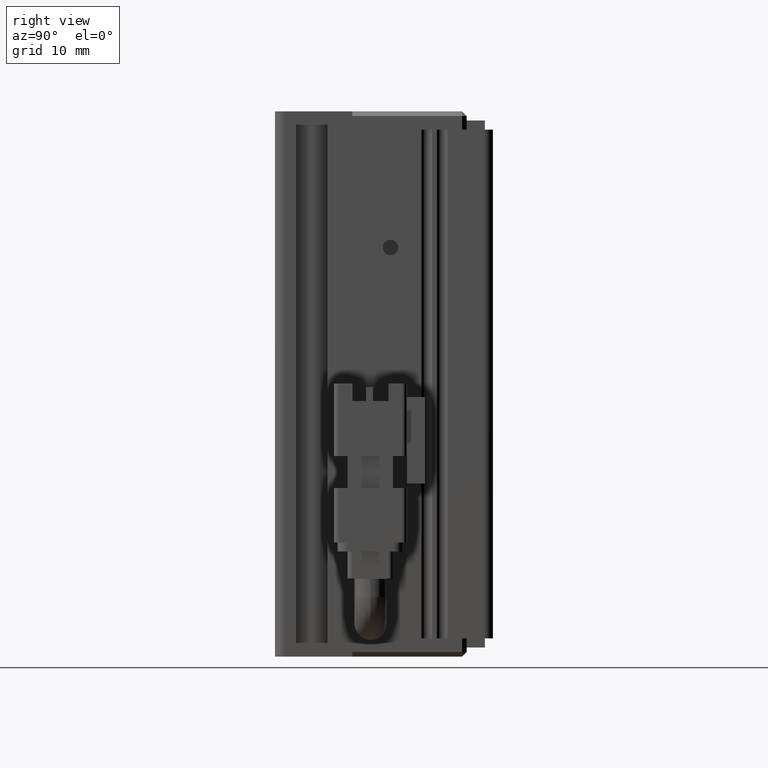
[diagram: clean part render]
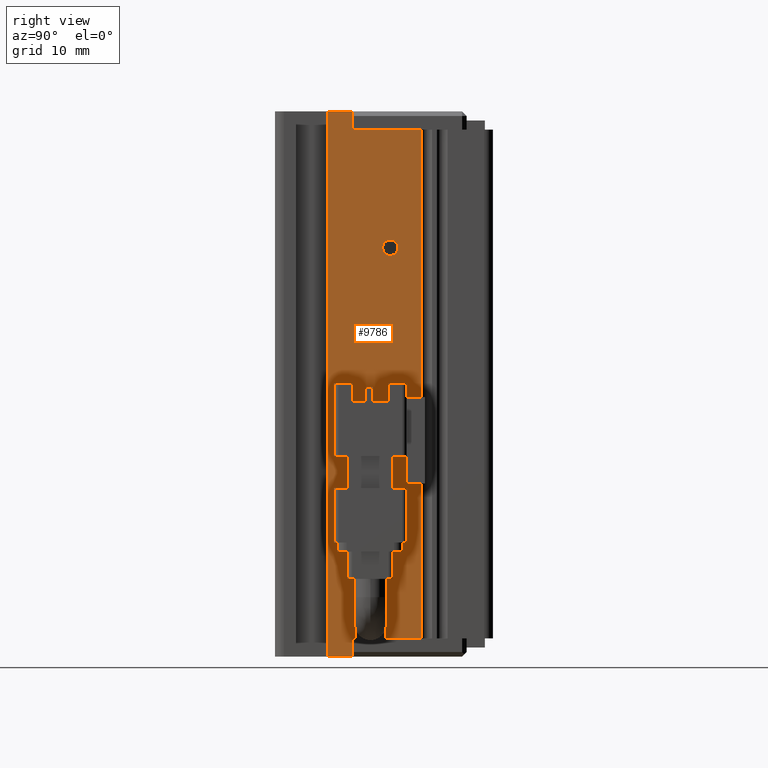
[diagram: same view with one face highlighted and labeled with its STEP entity id]
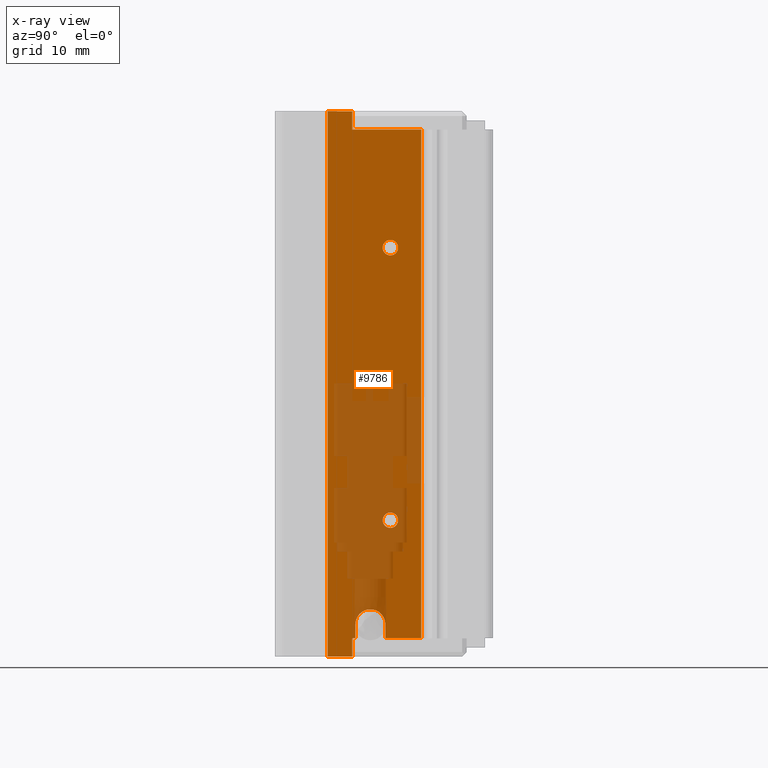
[diagram: x-ray of the same camera — body ghosted, the highlighted face saturated]
A machine part, right view. The second image highlights one B-rep face of the part: STEP entity #9786.
The next image is the same camera in x-ray: the body ghosted, the highlighted face saturated — about 30% of this face is hidden behind the body in this view.
In plain terms, the highlighted planar face has unit normal (-1, -0, 0).
Its self-contained STEP definition (entity closure, byte-faithful):
#95 = CARTESIAN_POINT ( 'NONE',  ( 40.92537974683542500, 19.78379746835443600, -99.15000000000002000 ) ) ;
#122 = FACE_OUTER_BOUND ( 'NONE', #25586, .T. ) ;
#351 = DIRECTION ( 'NONE',  ( 1.000000000000000000, 0.0000000000000000000, 0.0000000000000000000 ) ) ;
#375 = DIRECTION ( 'NONE',  ( 1.000000000000000000, 0.0000000000000000000, 0.0000000000000000000 ) ) ;
#423 = DIRECTION ( 'NONE',  ( 5.687617954022316600E-016, -1.000000000000000000, 0.0000000000000000000 ) ) ;
#583 = LINE ( 'NONE', #16145, #14340 ) ;
#585 = CIRCLE ( 'NONE', #23596, 0.8499999999999896500 ) ;
#588 = DIRECTION ( 'NONE',  ( 0.0000000000000000000, 1.000000000000000000, 0.0000000000000000000 ) ) ;
#600 = CARTESIAN_POINT ( 'NONE',  ( 40.92537974683542500, 15.58379746835443800, -85.00000000000000000 ) ) ;
#752 = DIRECTION ( 'NONE',  ( 0.0000000000000000000, 0.0000000000000000000, 1.000000000000000000 ) ) ;
#798 = DIRECTION ( 'NONE',  ( 0.0000000000000000000, 0.0000000000000000000, 1.000000000000000000 ) ) ;
#1318 = CIRCLE ( 'NONE', #25064, 0.8499999999999896500 ) ;
#1742 = DIRECTION ( 'NONE',  ( 1.000000000000000000, 0.0000000000000000000, 0.0000000000000000000 ) ) ;
#1752 = VERTEX_POINT ( 'NONE', #15658 ) ;
#2138 = ORIENTED_EDGE ( 'NONE', *, *, #15909, .T. ) ;
#2462 = VECTOR ( 'NONE', #14998, 1000.000000000000000 ) ;
#2528 = VECTOR ( 'NONE', #19668, 1000.000000000000000 ) ;
#2606 = VERTEX_POINT ( 'NONE', #95 ) ;
#2729 = EDGE_CURVE ( 'NONE', #14704, #15790, #26451, .T. ) ;
#3420 = CARTESIAN_POINT ( 'NONE',  ( 40.92537974683542500, 23.18379746835443800, -87.00000000000001400 ) ) ;
#3733 = DIRECTION ( 'NONE',  ( 0.0000000000000000000, 0.0000000000000000000, 1.000000000000000000 ) ) ;
#4546 = ORIENTED_EDGE ( 'NONE', *, *, #6998, .F. ) ;
#4584 = ORIENTED_EDGE ( 'NONE', *, *, #13900, .F. ) ;
#4611 = EDGE_CURVE ( 'NONE', #17955, #27168, #23134, .T. ) ;
#4723 = ORIENTED_EDGE ( 'NONE', *, *, #2729, .F. ) ;
#5198 = AXIS2_PLACEMENT_3D ( 'NONE', #19726, #21835, #8632 ) ;
#5783 = VERTEX_POINT ( 'NONE', #5803 ) ;
#5803 = CARTESIAN_POINT ( 'NONE',  ( 40.92537974683542500, 15.58379746835443800, -145.0000000000000300 ) ) ;
#5881 = EDGE_LOOP ( 'NONE', ( #21278, #23445 ) ) ;
#6565 = EDGE_CURVE ( 'NONE', #28470, #10014, #27802, .T. ) ;
#6749 = CIRCLE ( 'NONE', #5198, 0.8499999999999896500 ) ;
#6998 = EDGE_CURVE ( 'NONE', #2606, #10748, #6749, .T. ) ;
#7256 = CARTESIAN_POINT ( 'NONE',  ( 40.92537974683541800, 17.58379746835443700, -141.4500000000000200 ) ) ;
#7885 = CARTESIAN_POINT ( 'NONE',  ( 40.92537974683542500, 19.78379746835443600, -130.0000000000000000 ) ) ;
#8056 = CARTESIAN_POINT ( 'NONE',  ( 40.92537974683542500, 15.93379746835443100, -143.0000000000000300 ) ) ;
#8588 = VECTOR ( 'NONE', #12278, 1000.000000000000000 ) ;
#8632 = DIRECTION ( 'NONE',  ( 0.0000000000000000000, 0.0000000000000000000, 1.000000000000000000 ) ) ;
#8637 = EDGE_CURVE ( 'NONE', #17955, #12219, #27757, .T. ) ;
#9028 = CARTESIAN_POINT ( 'NONE',  ( 40.92537974683542500, 19.78379746835443600, -130.0000000000000000 ) ) ;
#9289 = CARTESIAN_POINT ( 'NONE',  ( 40.92537974683543200, 7.083797468354437600, -85.00000000000000000 ) ) ;
#9298 = CARTESIAN_POINT ( 'NONE',  ( 40.92537974683542500, 15.58379746835443800, -85.00000000000000000 ) ) ;
#9786 = ADVANCED_FACE ( 'NONE', ( #122, #23849, #11443 ), #17777, .F. ) ;
#10014 = VERTEX_POINT ( 'NONE', #14987 ) ;
#10086 = CARTESIAN_POINT ( 'NONE',  ( 40.92537974683542500, 23.18379746835444200, -85.00000000000000000 ) ) ;
#10153 = ORIENTED_EDGE ( 'NONE', *, *, #16591, .T. ) ;
#10321 = CARTESIAN_POINT ( 'NONE',  ( 40.92537974683543200, 7.083797468354437600, -143.0000000000000300 ) ) ;
#10733 = DIRECTION ( 'NONE',  ( 5.687617954022316600E-016, -1.000000000000000000, 0.0000000000000000000 ) ) ;
#10748 = VERTEX_POINT ( 'NONE', #17639 ) ;
#10852 = CARTESIAN_POINT ( 'NONE',  ( 40.92537974683541800, 19.23379746835443900, -141.4500000000000200 ) ) ;
#11366 = EDGE_CURVE ( 'NONE', #14602, #14704, #22161, .T. ) ;
#11443 = FACE_BOUND ( 'NONE', #5881, .T. ) ;
#12062 = VERTEX_POINT ( 'NONE', #18829 ) ;
#12219 = VERTEX_POINT ( 'NONE', #19665 ) ;
#12278 = DIRECTION ( 'NONE',  ( -0.0000000000000000000, -0.0000000000000000000, -1.000000000000000000 ) ) ;
#12695 = CARTESIAN_POINT ( 'NONE',  ( 40.92537974683542500, 7.083797468354437600, -85.00000000000000000 ) ) ;
#13579 = ORIENTED_EDGE ( 'NONE', *, *, #19149, .F. ) ;
#13600 = VECTOR ( 'NONE', #17402, 1000.000000000000000 ) ;
#13707 = LINE ( 'NONE', #12695, #27492 ) ;
#13900 = EDGE_CURVE ( 'NONE', #12062, #19964, #13707, .T. ) ;
#14340 = VECTOR ( 'NONE', #798, 1000.000000000000000 ) ;
#14602 = VERTEX_POINT ( 'NONE', #23269 ) ;
#14704 = VERTEX_POINT ( 'NONE', #3420 ) ;
#14711 = DIRECTION ( 'NONE',  ( 5.687617954022316600E-016, -1.000000000000000000, 0.0000000000000000000 ) ) ;
#14987 = CARTESIAN_POINT ( 'NONE',  ( 40.92537974683542500, 19.78379746835443600, -129.1500000000000100 ) ) ;
#14997 = VECTOR ( 'NONE', #25961, 1000.000000000000000 ) ;
#14998 = DIRECTION ( 'NONE',  ( -0.0000000000000000000, -0.0000000000000000000, -1.000000000000000000 ) ) ;
#15469 = VECTOR ( 'NONE', #21008, 1000.000000000000000 ) ;
#15555 = EDGE_CURVE ( 'NONE', #14602, #19964, #18975, .T. ) ;
#15658 = CARTESIAN_POINT ( 'NONE',  ( 40.92537974683542500, 12.88379746835443400, -145.0000000000000300 ) ) ;
#15790 = VERTEX_POINT ( 'NONE', #16164 ) ;
#15909 = EDGE_CURVE ( 'NONE', #24193, #21236, #25113, .T. ) ;
#16145 = CARTESIAN_POINT ( 'NONE',  ( 40.92537974683542500, 12.88379746835443400, -85.00000000000000000 ) ) ;
#16164 = CARTESIAN_POINT ( 'NONE',  ( 40.92537974683542500, 23.18379746835443800, -143.0000000000000300 ) ) ;
#16370 = AXIS2_PLACEMENT_3D ( 'NONE', #7256, #26926, #588 ) ;
#16479 = EDGE_LOOP ( 'NONE', ( #4546, #18643 ) ) ;
#16591 = EDGE_CURVE ( 'NONE', #5783, #27168, #26846, .T. ) ;
#17402 = DIRECTION ( 'NONE',  ( -5.687617954022316600E-016, 1.000000000000000000, -0.0000000000000000000 ) ) ;
#17495 = ORIENTED_EDGE ( 'NONE', *, *, #20856, .F. ) ;
#17639 = CARTESIAN_POINT ( 'NONE',  ( 40.92537974683542500, 19.78379746835443600, -100.8499999999999900 ) ) ;
#17777 = PLANE ( 'NONE',  #28304 ) ;
#17955 = VERTEX_POINT ( 'NONE', #8056 ) ;
#18643 = ORIENTED_EDGE ( 'NONE', *, *, #27625, .F. ) ;
#18829 = CARTESIAN_POINT ( 'NONE',  ( 40.92537974683542500, 12.88379746835443400, -85.00000000000000000 ) ) ;
#18975 = LINE ( 'NONE', #9298, #23434 ) ;
#19149 = EDGE_CURVE ( 'NONE', #5783, #1752, #21728, .T. ) ;
#19157 = AXIS2_PLACEMENT_3D ( 'NONE', #9028, #351, #24363 ) ;
#19457 = CARTESIAN_POINT ( 'NONE',  ( 40.92537974683543200, 7.083797468354437600, -143.0000000000000300 ) ) ;
#19492 = CARTESIAN_POINT ( 'NONE',  ( 40.92537974683541800, 15.93379746835443100, -143.0000000000000300 ) ) ;
#19494 = CARTESIAN_POINT ( 'NONE',  ( 40.92537974683542500, 19.23379746835443900, -143.0000000000000300 ) ) ;
#19563 = CARTESIAN_POINT ( 'NONE',  ( 40.92537974683543200, 7.083797468354437600, -145.0000000000000300 ) ) ;
#19665 = CARTESIAN_POINT ( 'NONE',  ( 40.92537974683541800, 15.93379746835443100, -141.4500000000000200 ) ) ;
#19668 = DIRECTION ( 'NONE',  ( 5.687617954022316600E-016, -1.000000000000000000, 0.0000000000000000000 ) ) ;
#19726 = CARTESIAN_POINT ( 'NONE',  ( 40.92537974683542500, 19.78379746835443600, -100.0000000000000000 ) ) ;
#19964 = VERTEX_POINT ( 'NONE', #600 ) ;
#19996 = DIRECTION ( 'NONE',  ( -1.000000000000000000, -5.687617954022316600E-016, 0.0000000000000000000 ) ) ;
#20180 = EDGE_CURVE ( 'NONE', #15790, #21236, #21350, .T. ) ;
#20856 = EDGE_CURVE ( 'NONE', #1752, #12062, #583, .T. ) ;
#21008 = DIRECTION ( 'NONE',  ( -0.0000000000000000000, 0.0000000000000000000, 1.000000000000000000 ) ) ;
#21116 = ORIENTED_EDGE ( 'NONE', *, *, #20180, .F. ) ;
#21130 = ORIENTED_EDGE ( 'NONE', *, *, #15555, .T. ) ;
#21236 = VERTEX_POINT ( 'NONE', #19494 ) ;
#21278 = ORIENTED_EDGE ( 'NONE', *, *, #27735, .F. ) ;
#21350 = LINE ( 'NONE', #10321, #24780 ) ;
#21728 = LINE ( 'NONE', #19563, #2528 ) ;
#21835 = DIRECTION ( 'NONE',  ( 1.000000000000000000, 0.0000000000000000000, 0.0000000000000000000 ) ) ;
#21898 = ORIENTED_EDGE ( 'NONE', *, *, #23800, .F. ) ;
#22161 = LINE ( 'NONE', #28506, #13600 ) ;
#22421 = ORIENTED_EDGE ( 'NONE', *, *, #4611, .F. ) ;
#22429 = VECTOR ( 'NONE', #10733, 1000.000000000000000 ) ;
#22894 = ORIENTED_EDGE ( 'NONE', *, *, #11366, .F. ) ;
#23134 = LINE ( 'NONE', #19457, #22429 ) ;
#23269 = CARTESIAN_POINT ( 'NONE',  ( 40.92537974683542500, 15.58379746835443800, -87.00000000000001400 ) ) ;
#23434 = VECTOR ( 'NONE', #24623, 1000.000000000000000 ) ;
#23445 = ORIENTED_EDGE ( 'NONE', *, *, #6565, .F. ) ;
#23551 = ORIENTED_EDGE ( 'NONE', *, *, #8637, .T. ) ;
#23596 = AXIS2_PLACEMENT_3D ( 'NONE', #24657, #375, #752 ) ;
#23800 = EDGE_CURVE ( 'NONE', #24193, #12219, #27737, .T. ) ;
#23849 = FACE_BOUND ( 'NONE', #16479, .T. ) ;
#24193 = VERTEX_POINT ( 'NONE', #10852 ) ;
#24363 = DIRECTION ( 'NONE',  ( 0.0000000000000000000, 0.0000000000000000000, 1.000000000000000000 ) ) ;
#24623 = DIRECTION ( 'NONE',  ( -0.0000000000000000000, 0.0000000000000000000, 1.000000000000000000 ) ) ;
#24657 = CARTESIAN_POINT ( 'NONE',  ( 40.92537974683542500, 19.78379746835443600, -100.0000000000000000 ) ) ;
#24780 = VECTOR ( 'NONE', #14711, 1000.000000000000000 ) ;
#25064 = AXIS2_PLACEMENT_3D ( 'NONE', #7885, #1742, #3733 ) ;
#25113 = LINE ( 'NONE', #28019, #2462 ) ;
#25586 = EDGE_LOOP ( 'NONE', ( #23551, #21898, #2138, #21116, #4723, #22894, #21130, #4584, #17495, #13579, #10153, #22421 ) ) ;
#25961 = DIRECTION ( 'NONE',  ( -0.0000000000000000000, 0.0000000000000000000, 1.000000000000000000 ) ) ;
#26254 = CARTESIAN_POINT ( 'NONE',  ( 40.92537974683542500, 19.78379746835443600, -130.8499999999999900 ) ) ;
#26451 = LINE ( 'NONE', #10086, #8588 ) ;
#26481 = CARTESIAN_POINT ( 'NONE',  ( 40.92537974683542500, 15.58379746835443800, -143.0000000000000300 ) ) ;
#26846 = LINE ( 'NONE', #27573, #15469 ) ;
#26926 = DIRECTION ( 'NONE',  ( 1.000000000000000000, 5.687617954022316600E-016, -0.0000000000000000000 ) ) ;
#27168 = VERTEX_POINT ( 'NONE', #26481 ) ;
#27492 = VECTOR ( 'NONE', #28077, 1000.000000000000000 ) ;
#27573 = CARTESIAN_POINT ( 'NONE',  ( 40.92537974683542500, 15.58379746835443800, -85.00000000000000000 ) ) ;
#27625 = EDGE_CURVE ( 'NONE', #10748, #2606, #585, .T. ) ;
#27735 = EDGE_CURVE ( 'NONE', #10014, #28470, #1318, .T. ) ;
#27737 = CIRCLE ( 'NONE', #16370, 1.650000000000002100 ) ;
#27757 = LINE ( 'NONE', #19492, #14997 ) ;
#27802 = CIRCLE ( 'NONE', #19157, 0.8499999999999896500 ) ;
#28019 = CARTESIAN_POINT ( 'NONE',  ( 40.92537974683541800, 19.23379746835443900, -143.0000000000000300 ) ) ;
#28077 = DIRECTION ( 'NONE',  ( 0.0000000000000000000, 1.000000000000000000, -0.0000000000000000000 ) ) ;
#28304 = AXIS2_PLACEMENT_3D ( 'NONE', #9289, #19996, #423 ) ;
#28470 = VERTEX_POINT ( 'NONE', #26254 ) ;
#28506 = CARTESIAN_POINT ( 'NONE',  ( 40.92537974683543200, 7.083797468354437600, -87.00000000000001400 ) ) ;